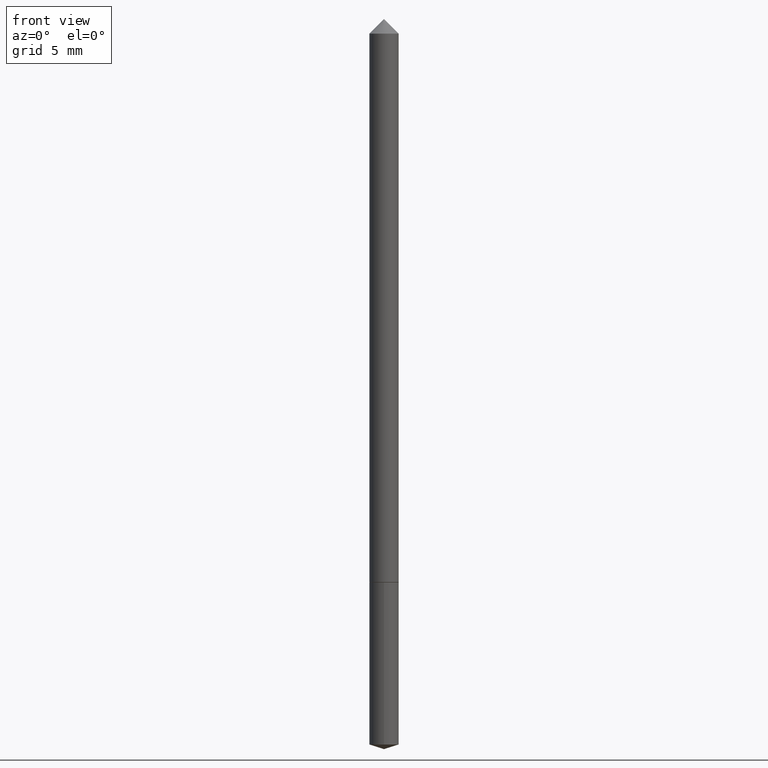
[diagram: clean part render]
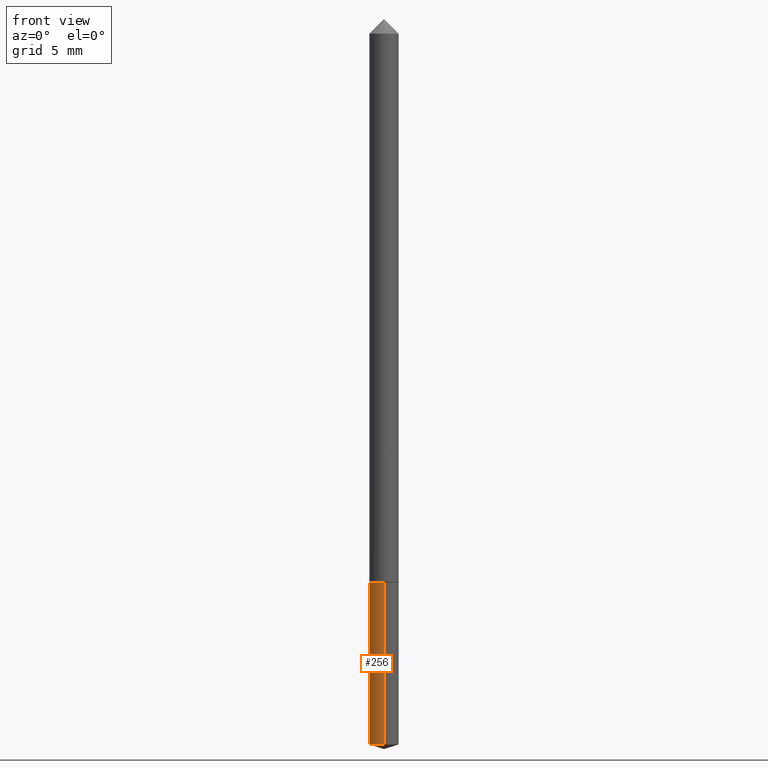
[diagram: same view with one face highlighted and labeled with its STEP entity id]
A machine part, front view. The second image highlights one B-rep face of the part: STEP entity #256.
In plain terms, the highlighted cylindrical surface (edge-blend (fillet) strip) has radius 0.5994 mm, axis along (-0, 0, 1).
Its self-contained STEP definition (entity closure, byte-faithful):
#1 = CARTESIAN_POINT ( 'NONE',  ( 1.676880856394122855E-16, 0.02359999999999589509, -1.173658948582456452 ) ) ;
#3 = EDGE_CURVE ( 'NONE', #189, #140, #213, .T. ) ;
#5 = AXIS2_PLACEMENT_3D ( 'NONE', #37, #342, #318 ) ;
#11 = FACE_OUTER_BOUND ( 'NONE', #276, .T. ) ;
#13 = DIRECTION ( 'NONE',  ( -6.982962677686265133E-15, -1.000000000000000000, 5.787813545898861862E-15 ) ) ;
#22 = ORIENTED_EDGE ( 'NONE', *, *, #355, .T. ) ;
#37 = CARTESIAN_POINT ( 'NONE',  ( 2.233446660688885291E-29, -3.188769906765445031E-15, -0.9133000000000001117 ) ) ;
#47 = CARTESIAN_POINT ( 'NONE',  ( 2.870112667337990554E-29, -4.097856549564174586E-15, -1.173658948582456230 ) ) ;
#90 = DIRECTION ( 'NONE',  ( -2.445339444315170528E-29, 3.491666592403757410E-15, 1.000000000000000000 ) ) ;
#102 = DIRECTION ( 'NONE',  ( -2.445339444315170528E-29, 3.491666592403757410E-15, 1.000000000000000000 ) ) ;
#127 = AXIS2_PLACEMENT_3D ( 'NONE', #47, #102, #219 ) ;
#140 = VERTEX_POINT ( 'NONE', #307 ) ;
#154 = CARTESIAN_POINT ( 'NONE',  ( 2.233446660688885291E-29, -3.188769906765445031E-15, -0.9133000000000001117 ) ) ;
#158 = ORIENTED_EDGE ( 'NONE', *, *, #3, .T. ) ;
#161 = EDGE_CURVE ( 'NONE', #189, #321, #175, .T. ) ;
#173 = CARTESIAN_POINT ( 'NONE',  ( 1.676880856394059499E-16, 0.02359999999999681450, -0.9133000000000002228 ) ) ;
#175 = LINE ( 'NONE', #173, #176 ) ;
#176 = VECTOR ( 'NONE', #285, 39.37007874015748143 ) ;
#180 = CARTESIAN_POINT ( 'NONE',  ( -1.647979191933735680E-16, -0.02360000000000319134, -0.9132999999999998897 ) ) ;
#181 = CIRCLE ( 'NONE', #294, 0.02360000000000000292 ) ;
#189 = VERTEX_POINT ( 'NONE', #1 ) ;
#206 = CARTESIAN_POINT ( 'NONE',  ( 1.676880856394123348E-16, 0.02359999999999681450, -0.9133000000000002228 ) ) ;
#209 = LINE ( 'NONE', #180, #306 ) ;
#212 = DIRECTION ( 'NONE',  ( -2.445339444315170528E-29, 3.491666592403757410E-15, 1.000000000000000000 ) ) ;
#213 = CIRCLE ( 'NONE', #127, 0.02360000000000000292 ) ;
#219 = DIRECTION ( 'NONE',  ( -6.982962677686265133E-15, -1.000000000000000000, 5.787813545898861862E-15 ) ) ;
#223 = ORIENTED_EDGE ( 'NONE', *, *, #161, .F. ) ;
#231 = CYLINDRICAL_SURFACE ( 'NONE', #5, 0.02360000000000000292 ) ;
#236 = CARTESIAN_POINT ( 'NONE',  ( -1.647979191933735680E-16, -0.02360000000000319134, -0.9132999999999998897 ) ) ;
#256 = ADVANCED_FACE ( 'NONE', ( #11 ), #231, .T. ) ;
#276 = EDGE_LOOP ( 'NONE', ( #223, #158, #22, #359 ) ) ;
#280 = EDGE_CURVE ( 'NONE', #321, #324, #181, .T. ) ;
#285 = DIRECTION ( 'NONE',  ( -2.445339444315170528E-29, 3.491666592403757410E-15, 1.000000000000000000 ) ) ;
#294 = AXIS2_PLACEMENT_3D ( 'NONE', #154, #90, #13 ) ;
#306 = VECTOR ( 'NONE', #212, 39.37007874015748143 ) ;
#307 = CARTESIAN_POINT ( 'NONE',  ( -1.647979191933671339E-16, -0.02360000000000408993, -1.173658948582456008 ) ) ;
#318 = DIRECTION ( 'NONE',  ( -6.982962677686265133E-15, -1.000000000000000000, 5.787813545898861862E-15 ) ) ;
#321 = VERTEX_POINT ( 'NONE', #206 ) ;
#324 = VERTEX_POINT ( 'NONE', #236 ) ;
#342 = DIRECTION ( 'NONE',  ( -2.445339444315170528E-29, 3.491666592403757410E-15, 1.000000000000000000 ) ) ;
#355 = EDGE_CURVE ( 'NONE', #140, #324, #209, .T. ) ;
#359 = ORIENTED_EDGE ( 'NONE', *, *, #280, .F. ) ;